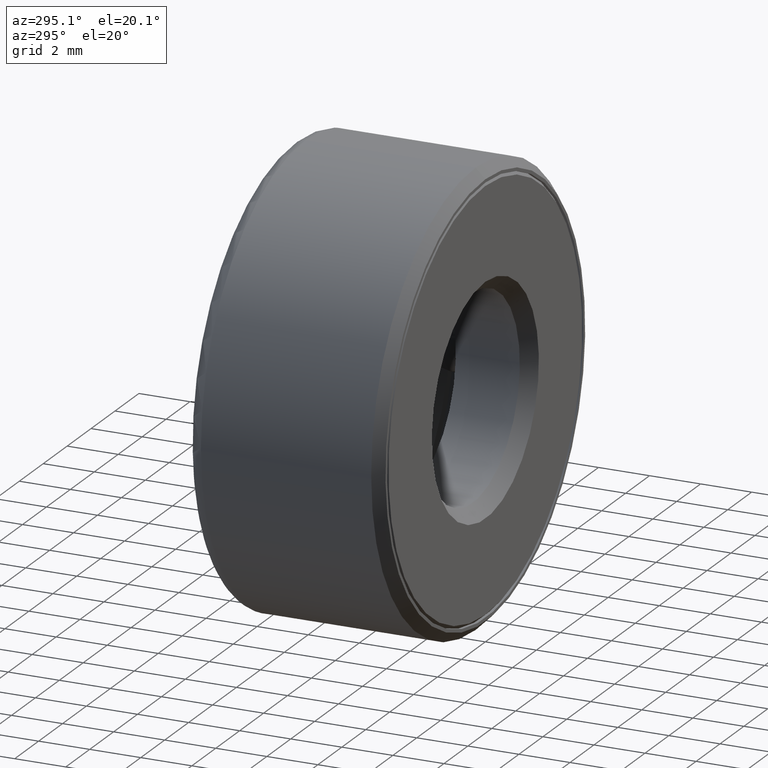
[diagram: clean part render]
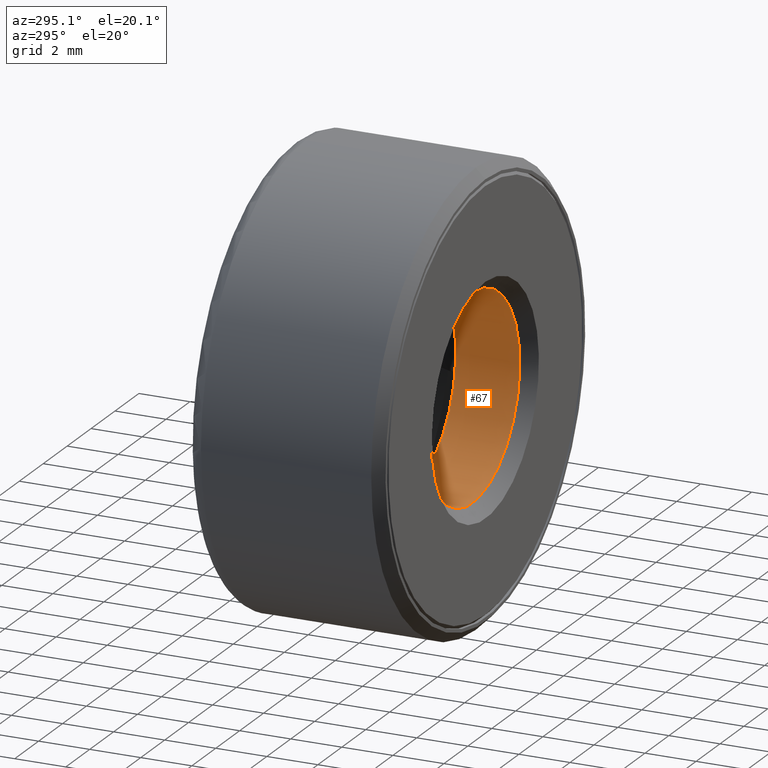
[diagram: same view with one face highlighted and labeled with its STEP entity id]
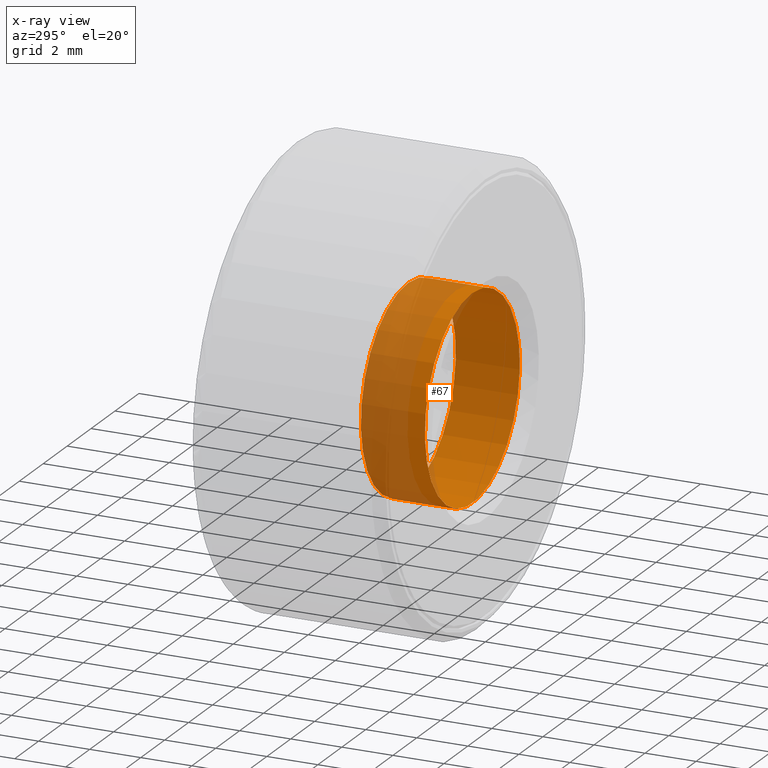
[diagram: x-ray of the same camera — body ghosted, the highlighted face saturated]
A machine part, auxiliary view. The second image highlights one B-rep face of the part: STEP entity #67.
The next image is the same camera in x-ray: the body ghosted, the highlighted face saturated — about 40% of this face is hidden behind the body in this view.
In plain terms, the highlighted cylindrical surface (bore or boss wall) has radius 3.9688 mm, axis along (-0, 1, -0).
Its self-contained STEP definition (entity closure, byte-faithful):
#47 = DIRECTION ( 'NONE',  ( 0.0000000000000000000, 0.0000000000000000000, 1.000000000000000000 ) ) ;
#52 = VERTEX_POINT ( 'NONE', #118 ) ;
#56 = DIRECTION ( 'NONE',  ( 0.0000000000000000000, 0.0000000000000000000, 1.000000000000000000 ) ) ;
#67 = ADVANCED_FACE ( 'NONE', ( #279, #538 ), #555, .F. ) ;
#79 = CARTESIAN_POINT ( 'NONE',  ( 0.0000000000000000000, 0.1187500000000001100, 0.1562500000000000800 ) ) ;
#87 = AXIS2_PLACEMENT_3D ( 'NONE', #605, #366, #601 ) ;
#90 = EDGE_LOOP ( 'NONE', ( #588 ) ) ;
#92 = EDGE_CURVE ( 'NONE', #253, #253, #152, .T. ) ;
#118 = CARTESIAN_POINT ( 'NONE',  ( 0.0000000000000000000, 0.01999999999999995900, 0.1562500000000000300 ) ) ;
#136 = CARTESIAN_POINT ( 'NONE',  ( 0.0000000000000000000, 0.01999999999999995900, 0.0000000000000000000 ) ) ;
#146 = AXIS2_PLACEMENT_3D ( 'NONE', #463, #423, #47 ) ;
#152 = CIRCLE ( 'NONE', #87, 0.1562500000000000800 ) ;
#172 = EDGE_CURVE ( 'NONE', #52, #52, #493, .T. ) ;
#176 = EDGE_LOOP ( 'NONE', ( #580 ) ) ;
#235 = AXIS2_PLACEMENT_3D ( 'NONE', #136, #518, #56 ) ;
#253 = VERTEX_POINT ( 'NONE', #79 ) ;
#279 = FACE_OUTER_BOUND ( 'NONE', #176, .T. ) ;
#366 = DIRECTION ( 'NONE',  ( -0.0000000000000000000, 1.000000000000000000, -0.0000000000000000000 ) ) ;
#423 = DIRECTION ( 'NONE',  ( -0.0000000000000000000, 1.000000000000000000, -0.0000000000000000000 ) ) ;
#463 = CARTESIAN_POINT ( 'NONE',  ( 0.0000000000000000000, 0.0000000000000000000, 0.0000000000000000000 ) ) ;
#493 = CIRCLE ( 'NONE', #235, 0.1562500000000000300 ) ;
#518 = DIRECTION ( 'NONE',  ( -0.0000000000000000000, 1.000000000000000000, -0.0000000000000000000 ) ) ;
#538 = FACE_OUTER_BOUND ( 'NONE', #90, .T. ) ;
#555 = CYLINDRICAL_SURFACE ( 'NONE', #146, 0.1562500000000000800 ) ;
#580 = ORIENTED_EDGE ( 'NONE', *, *, #172, .F. ) ;
#588 = ORIENTED_EDGE ( 'NONE', *, *, #92, .T. ) ;
#601 = DIRECTION ( 'NONE',  ( 0.0000000000000000000, 0.0000000000000000000, 1.000000000000000000 ) ) ;
#605 = CARTESIAN_POINT ( 'NONE',  ( 0.0000000000000000000, 0.1187500000000001100, 0.0000000000000000000 ) ) ;